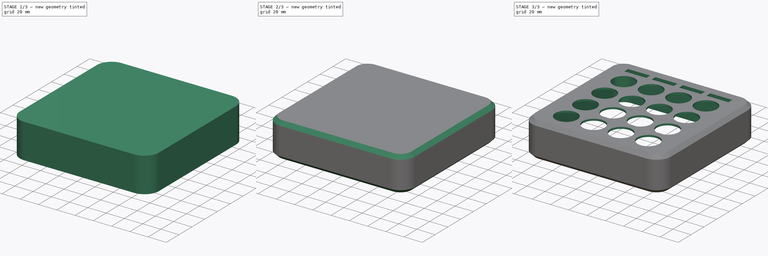
[diagram: build sequence overview — one tinted view per stage of 3, left to right]
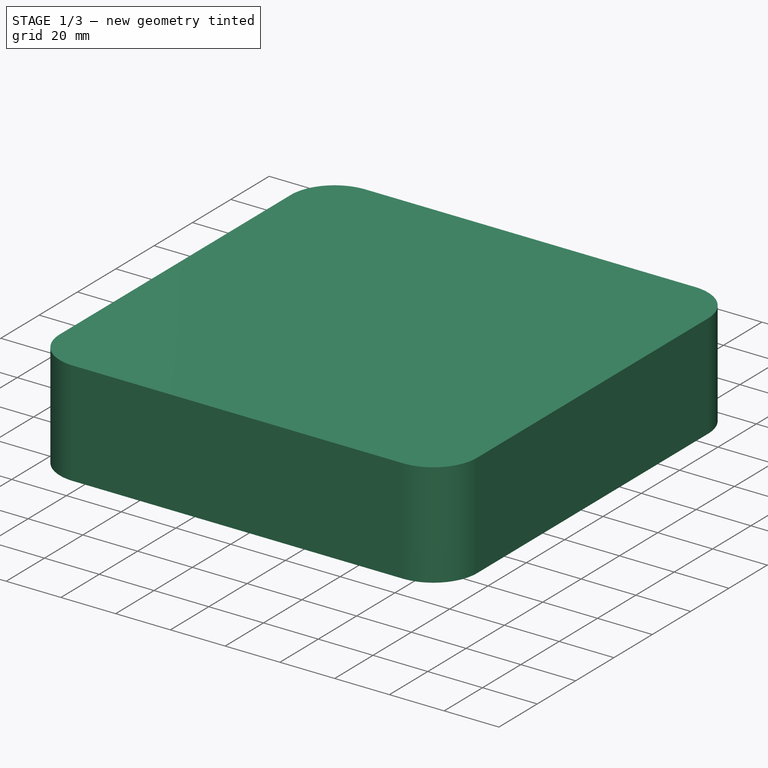
[diagram: stage 1 of 3 — iso view after this stage's code; geometry added in this stage tinted green]
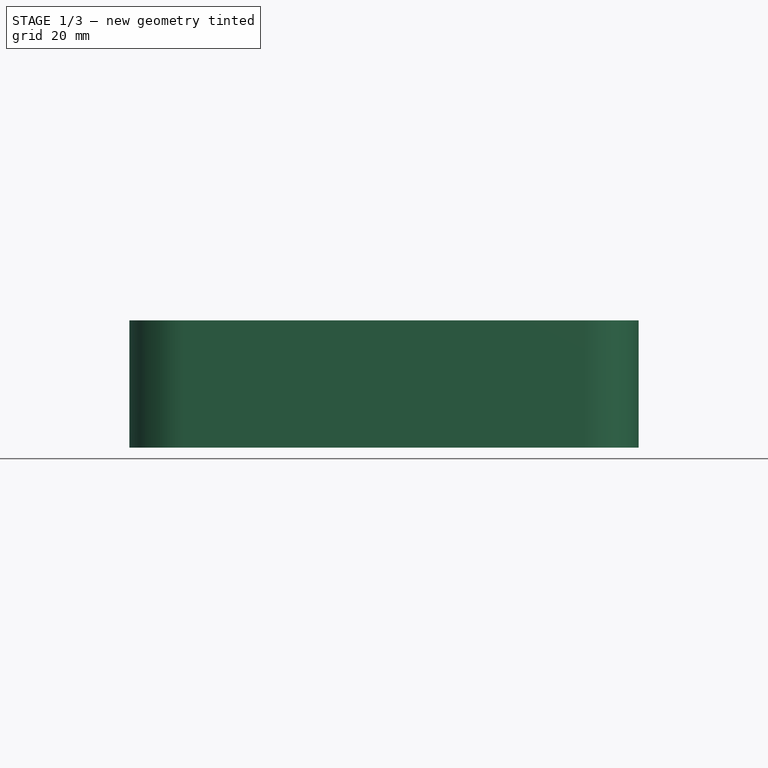
[diagram: stage 1 of 3 — front view after this stage's code; geometry added in this stage tinted green]
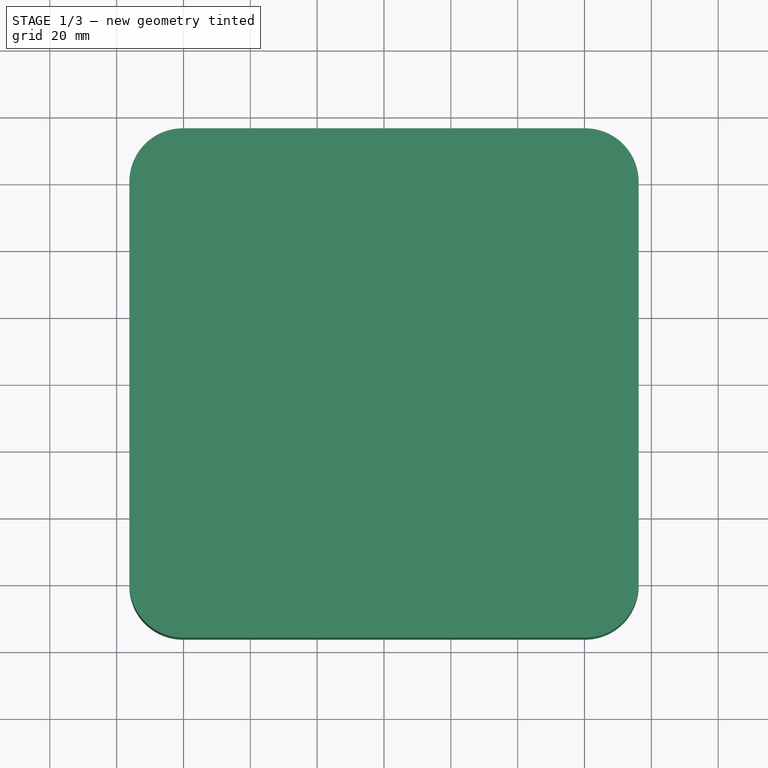
[diagram: stage 1 of 3 — top view after this stage's code; geometry added in this stage tinted green]
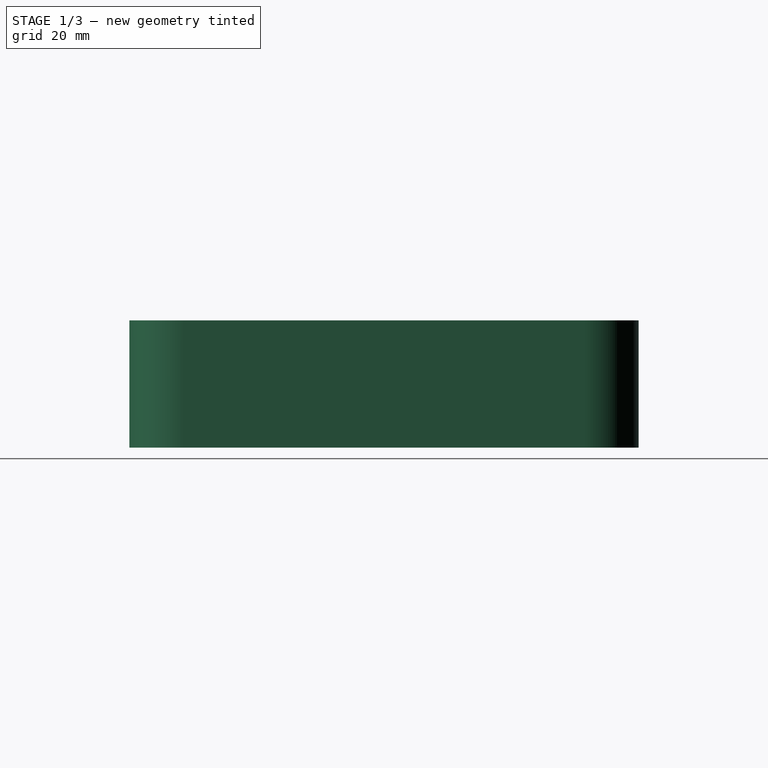
[diagram: stage 1 of 3 — right view after this stage's code; geometry added in this stage tinted green]
FCSTD DOCUMENT  (FreeCAD 0.18R4 (GitTag))
Label: New-Design
Comment: Project Vanilla, and its associated files, are part of a MIDI controller that is still in development.
License: All rights reserved
LicenseURL: http://en.wikipedia.org/wiki/All_rights_reserved
objects: Sketcher::SketchObject×2, PartDesign::Pocket×2, PartDesign::Pad×1, PartDesign::Fillet×1, PartDesign::Chamfer×1, PartDesign::Body×1
note: 11 computed .brp shape members not serialized (recipe doc carries the construction recipe); baked Part::Feature solids carry a one-line shape summary decoded from their .brp

FEATURE [Sketcher::SketchObject] Sketch  label="Base"
  MapMode = 5
  Support = -> [XY_Plane]
  sketch-geometry (9):
    g0: LineSegment [constr] StartX=76.2 StartY=76.2 StartZ=0 EndX=-76.2 EndY=76.2 EndZ=0
    g1: LineSegment [constr] StartX=-76.2 StartY=76.2 StartZ=0 EndX=-76.2 EndY=-76.2 EndZ=0
    g2: LineSegment [constr] StartX=-76.2 StartY=-76.2 StartZ=0 EndX=76.2 EndY=-76.2 EndZ=0
    g3: LineSegment [constr] StartX=76.2 StartY=-76.2 StartZ=0 EndX=76.2 EndY=76.2 EndZ=0
    g4: Circle [constr] CenterX=0 CenterY=0 CenterZ=0 NormalX=0 NormalY=0 NormalZ=1 AngleXU=0 Radius=107.763
    g5: LineSegment StartX=-76.2 StartY=-76.2 StartZ=0 EndX=76.2 EndY=-76.2 EndZ=0
    g6: LineSegment StartX=76.2 StartY=-76.2 StartZ=0 EndX=76.2 EndY=76.2 EndZ=0
    g7: LineSegment StartX=76.2 StartY=76.2 StartZ=0 EndX=-76.2 EndY=76.2 EndZ=0
    g8: LineSegment StartX=-76.2 StartY=76.2 StartZ=0 EndX=-76.2 EndY=-76.2 EndZ=0
  constraints (24):
    c: Coincident(g0,g1)
    c: Coincident(g1,g2)
    c: Coincident(g2,g3)
    c: Coincident(g3,g0)
    c: Equal(g0,g1)
    c: Equal(g0,g2)
    c: Equal(g0,g3)
    c: PointOnObject(g0,g4)
    c: PointOnObject(g1,g4)
    c: PointOnObject(g2,g4)
    c: PointOnObject(g3,g4)
    c: Coincident(g4,g-1)
    c: Angle(g-1,g3) = 1.5708
    c: DistanceX(g0,g0) = 152.4  'Side'
    c: Coincident(g5,g6)
    c: Coincident(g6,g7)
    c: Coincident(g7,g8)
    c: Coincident(g8,g5)
    c: Horizontal(g5)
    c: Horizontal(g7)
    c: Vertical(g6)
    c: Vertical(g8)
    c: Coincident(g5,g1)
    c: Coincident(g6,g0)
FEATURE [PartDesign::Pad] Pad  label="Thickness"
  Length = 38.1
  Length2 = 100
  Profile = -> Sketch
  Type = 0
  expr: Length = 1.5"
FEATURE [PartDesign::Fillet] Fillet
  Base = -> Pad [Edge8,Edge1,Edge2,Edge5]
  BaseFeature = -> Pad
  Radius = 16
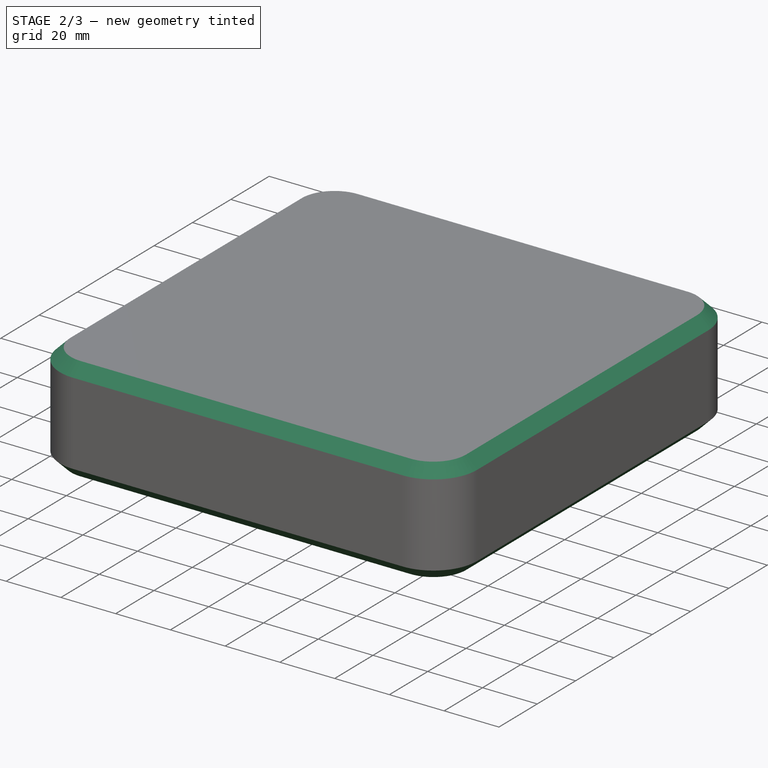
[diagram: stage 2 of 3 — iso view after this stage's code; geometry added in this stage tinted green]
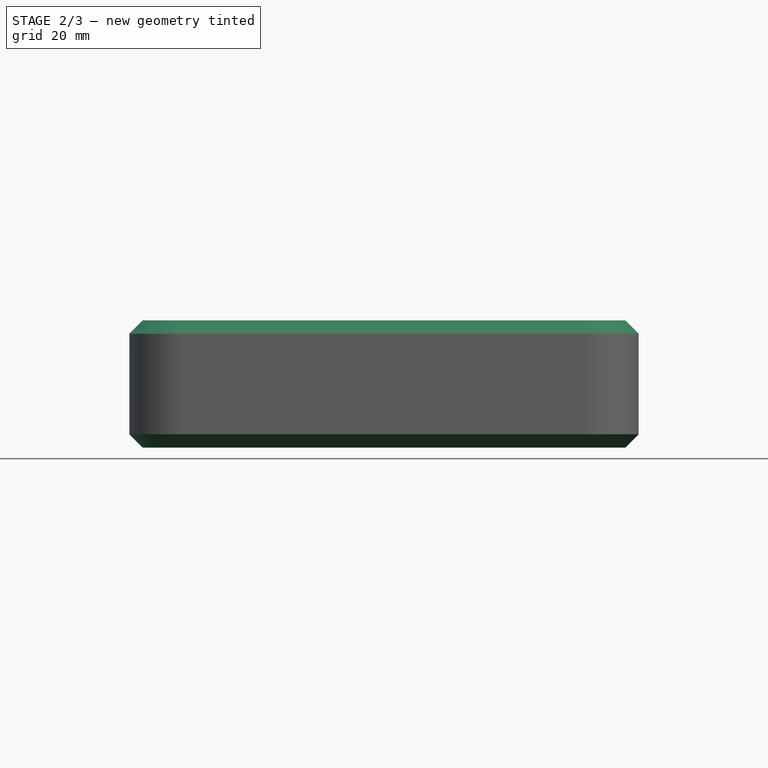
[diagram: stage 2 of 3 — front view after this stage's code; geometry added in this stage tinted green]
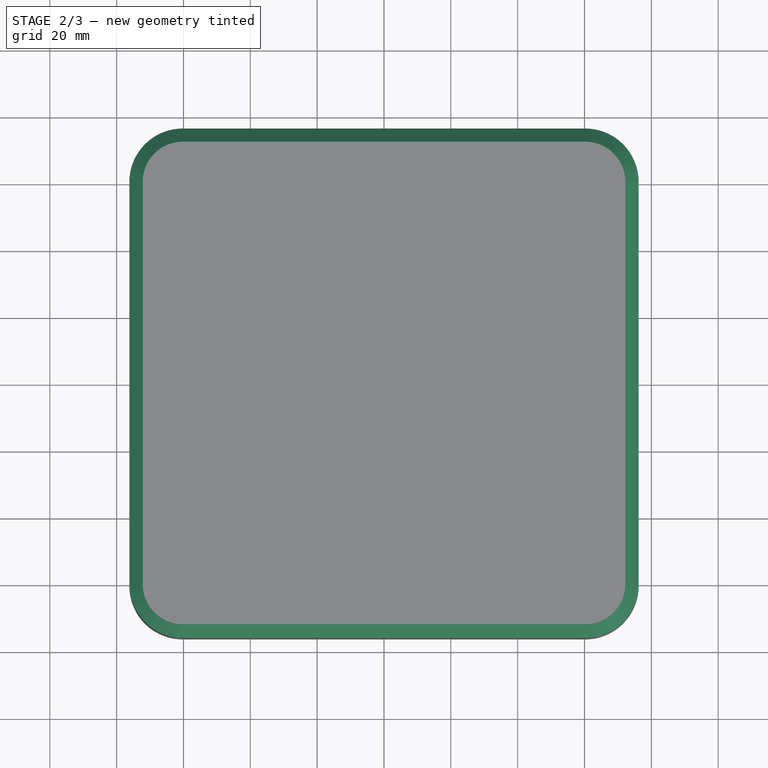
[diagram: stage 2 of 3 — top view after this stage's code; geometry added in this stage tinted green]
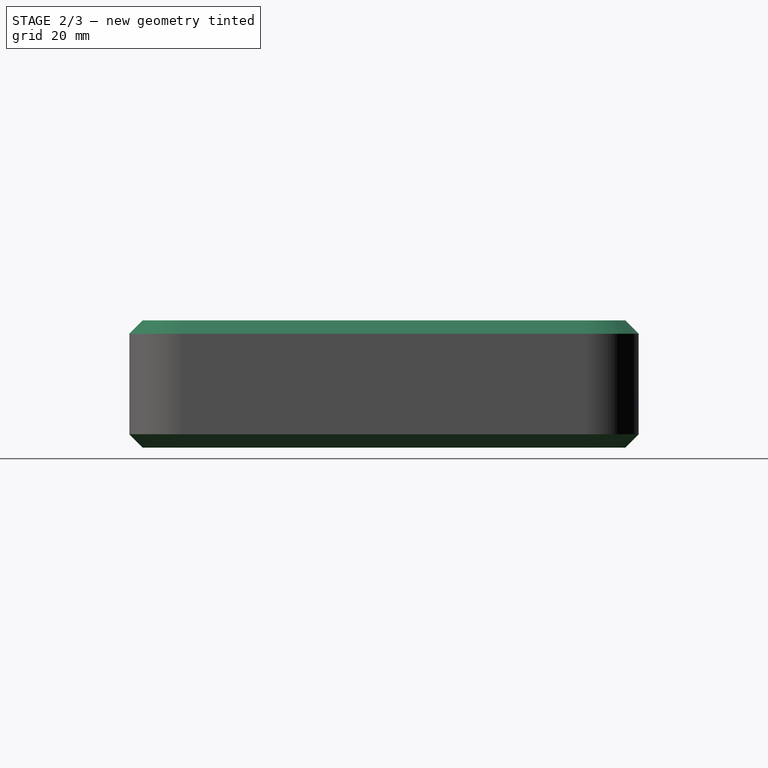
[diagram: stage 2 of 3 — right view after this stage's code; geometry added in this stage tinted green]
FEATURE [PartDesign::Chamfer] Chamfer
  Base = -> Fillet [Edge1,Edge4]
  BaseFeature = -> Fillet
  Size = 4
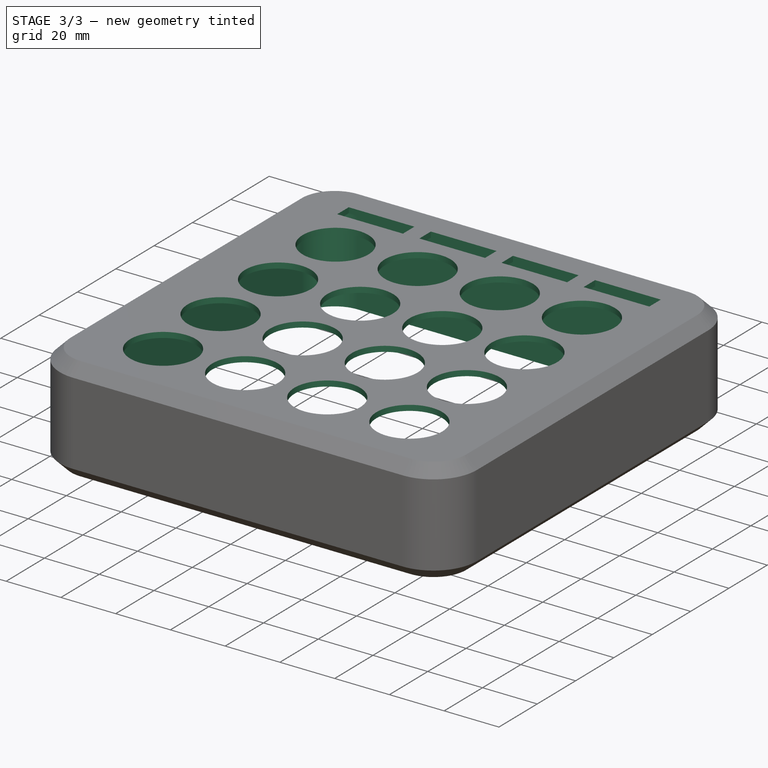
[diagram: stage 3 of 3 — iso view after this stage's code; geometry added in this stage tinted green]
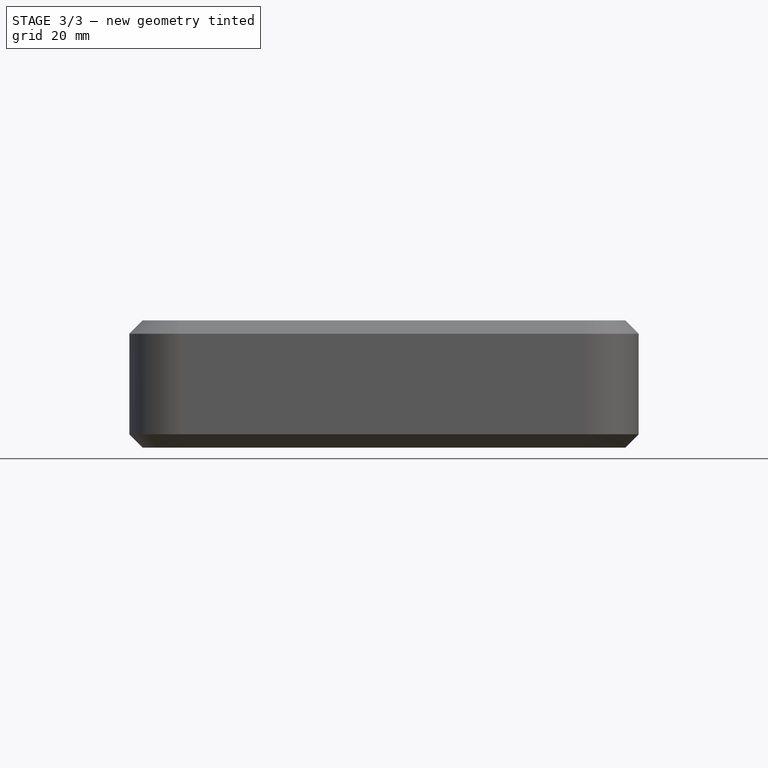
[diagram: stage 3 of 3 — front view after this stage's code; geometry added in this stage tinted green]
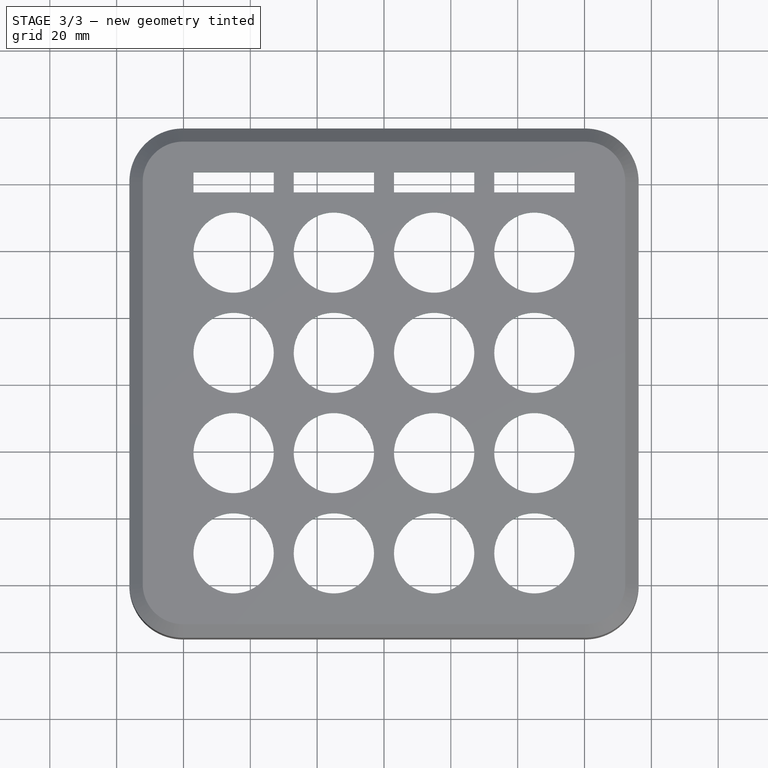
[diagram: stage 3 of 3 — top view after this stage's code; geometry added in this stage tinted green]
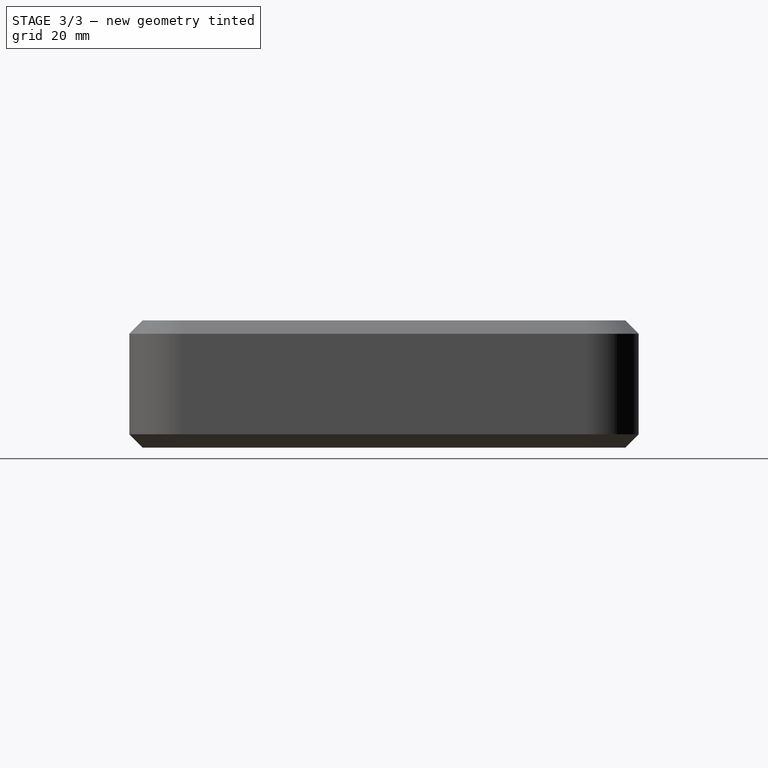
[diagram: stage 3 of 3 — right view after this stage's code; geometry added in this stage tinted green]
FEATURE [Sketcher::SketchObject] Sketch001  label="Holes"
  MapMode = 5
  Placement = pos=(0,0,38.1) rot=(0,0,1;0rad)
  Support = -> [Chamfer]
  expr: Constraints[84] = 24 / 4
  expr: Constraints[106] = 24 + 6
  expr: Constraints[91] = 12 + 3 + 6
  expr: Constraints[3] = 12 * 2 + 6
  sketch-geometry (65):
    g0: Circle CenterX=-45 CenterY=-51 CenterZ=0 NormalX=0 NormalY=0 NormalZ=1 AngleXU=0 Radius=12
    g1: Circle CenterX=-45 CenterY=-21 CenterZ=0 NormalX=0 NormalY=0 NormalZ=1 AngleXU=0 Radius=12
    g2: LineSegment [constr] StartX=-45 StartY=-51 StartZ=0 EndX=-45 EndY=-21 EndZ=0
    g3: Circle CenterX=-45 CenterY=9 CenterZ=0 NormalX=0 NormalY=0 NormalZ=1 AngleXU=0 Radius=12
    g4: LineSegment [constr] StartX=-45 StartY=-21 StartZ=0 EndX=-45 EndY=9 EndZ=0
    g5: Circle CenterX=-45 CenterY=39 CenterZ=0 NormalX=0 NormalY=0 NormalZ=1 AngleXU=0 Radius=12
    g6: LineSegment [constr] StartX=-45 StartY=9 StartZ=0 EndX=-45 EndY=39 EndZ=0
    g7: Circle CenterX=-15 CenterY=-51 CenterZ=0 NormalX=0 NormalY=0 NormalZ=1 AngleXU=0 Radius=12
    g8: LineSegment [constr] StartX=-45 StartY=-51 StartZ=0 EndX=-15 EndY=-51 EndZ=0
    g9: Circle CenterX=-15 CenterY=-21 CenterZ=0 NormalX=0 NormalY=0 NormalZ=1 AngleXU=0 Radius=12
    g10: LineSegment [constr] StartX=-15 StartY=-51 StartZ=0 EndX=-15 EndY=-21 EndZ=0
    g11: Circle CenterX=-15 CenterY=9 CenterZ=0 NormalX=0 NormalY=0 NormalZ=1 AngleXU=0 Radius=12
    g12: LineSegment [constr] StartX=-15 StartY=-21 StartZ=0 EndX=-15 EndY=9 EndZ=0
    g13: Circle CenterX=-15 CenterY=39 CenterZ=0 NormalX=0 NormalY=0 NormalZ=1 AngleXU=0 Radius=12
    g14: LineSegment [constr] StartX=-15 StartY=9 StartZ=0 EndX=-15 EndY=39 EndZ=0
    g15: Circle CenterX=15 CenterY=-51 CenterZ=0 NormalX=0 NormalY=0 NormalZ=1 AngleXU=0 Radius=12
    g16: LineSegment [constr] StartX=-15 StartY=-51 StartZ=0 EndX=15 EndY=-51 EndZ=0
    g17: Circle CenterX=15 CenterY=-21 CenterZ=0 NormalX=0 NormalY=0 NormalZ=1 AngleXU=0 Radius=12
    g18: LineSegment [constr] StartX=15 StartY=-51 StartZ=0 EndX=15 EndY=-21 EndZ=0
    g19: Circle CenterX=15 CenterY=9 CenterZ=0 NormalX=0 NormalY=0 NormalZ=1 AngleXU=0 Radius=12
    g20: LineSegment [constr] StartX=15 StartY=-21 StartZ=0 EndX=15 EndY=9 EndZ=0
    g21: Circle CenterX=15 CenterY=39 CenterZ=0 NormalX=0 NormalY=0 NormalZ=1 AngleXU=0 Radius=12
    g22: LineSegment [constr] StartX=15 StartY=9 StartZ=0 EndX=15 EndY=39 EndZ=0
    g23: Circle CenterX=45 CenterY=-51 CenterZ=0 NormalX=0 NormalY=0 NormalZ=1 AngleXU=0 Radius=12
    g24: LineSegment [constr] StartX=15 StartY=-51 StartZ=0 EndX=45 EndY=-51 EndZ=0
    g25: Circle CenterX=45 CenterY=-21 CenterZ=0 NormalX=0 NormalY=0 NormalZ=1 AngleXU=0 Radius=12
    g26: LineSegment [constr] StartX=45 StartY=-51 StartZ=0 EndX=45 EndY=-21 EndZ=0
    g27: Circle CenterX=45 CenterY=9 CenterZ=0 NormalX=0 NormalY=0 NormalZ=1 AngleXU=0 Radius=12
    g28: LineSegment [constr] StartX=45 StartY=-21 StartZ=0 EndX=45 EndY=9 EndZ=0
    g29: Circle CenterX=45 CenterY=39 CenterZ=0 NormalX=0 NormalY=0 NormalZ=1 AngleXU=0 Radius=12
    g30: LineSegment [constr] StartX=45 StartY=9 StartZ=0 EndX=45 EndY=39 EndZ=0
    g31: LineSegment StartX=-57 StartY=57 StartZ=0 EndX=-33 EndY=57 EndZ=0
    g32: LineSegment StartX=-33 StartY=57 StartZ=0 EndX=-33 EndY=63 EndZ=0
    g33: LineSegment StartX=-33 StartY=63 StartZ=0 EndX=-57 EndY=63 EndZ=0
    g34: LineSegment StartX=-57 StartY=63 StartZ=0 EndX=-57 EndY=57 EndZ=0
    g35: LineSegment [constr] StartX=-57 StartY=57 StartZ=0 EndX=-33 EndY=63 EndZ=0
    g36: LineSegment [constr] StartX=-57 StartY=63 StartZ=0 EndX=-33 EndY=57 EndZ=0
    g37: LineSegment [constr] StartX=-45 StartY=39 StartZ=0 EndX=-45 EndY=60 EndZ=0
    g38: LineSegment StartX=-27 StartY=57 StartZ=0 EndX=-3 EndY=57 EndZ=0
    g39: LineSegment StartX=-27 StartY=63 StartZ=0 EndX=-27 EndY=57 EndZ=0
    g40: LineSegment StartX=-3 StartY=63 StartZ=0 EndX=-27 EndY=63 EndZ=0
    g41: LineSegment StartX=-3 StartY=57 StartZ=0 EndX=-3 EndY=63 EndZ=0
    g42: LineSegment [constr] StartX=-57 StartY=57 StartZ=0 EndX=-27 EndY=57 EndZ=0
    g43: LineSegment StartX=3 StartY=57 StartZ=0 EndX=27 EndY=57 EndZ=0
    g44: LineSegment StartX=3 StartY=63 StartZ=0 EndX=3 EndY=57 EndZ=0
    g45: LineSegment StartX=27 StartY=63 StartZ=0 EndX=3 EndY=63 EndZ=0
    g46: LineSegment StartX=27 StartY=57 StartZ=0 EndX=27 EndY=63 EndZ=0
    g47: LineSegment [constr] StartX=-27 StartY=57 StartZ=0 EndX=3 EndY=57 EndZ=0
    g48: LineSegment StartX=33 StartY=57 StartZ=0 EndX=57 EndY=57 EndZ=0
    g49: LineSegment StartX=33 StartY=63 StartZ=0 EndX=33 EndY=57 EndZ=0
    g50: LineSegment StartX=57 StartY=63 StartZ=0 EndX=33 EndY=63 EndZ=0
    g51: LineSegment StartX=57 StartY=57 StartZ=0 EndX=57 EndY=63 EndZ=0
    g52: LineSegment [constr] StartX=3 StartY=57 StartZ=0 EndX=33 EndY=57 EndZ=0
    g53: LineSegment [constr] StartX=45 StartY=-51 StartZ=0 EndX=45 EndY=-63 EndZ=0
    g54: LineSegment [constr] StartX=45 StartY=-51 StartZ=0 EndX=57 EndY=-51 EndZ=0
    g55: LineSegment [constr] StartX=45 StartY=-63 StartZ=0 EndX=57 EndY=-63 EndZ=0
    g56: LineSegment [constr] StartX=57 StartY=-63 StartZ=0 EndX=57 EndY=-51 EndZ=0
    g57: LineSegment [constr] StartX=57 StartY=-51 StartZ=0 EndX=45 EndY=-51 EndZ=0
    g58: LineSegment [constr] StartX=45 StartY=-51 StartZ=0 EndX=45 EndY=-63 EndZ=0
    g59: LineSegment [constr] StartX=57 StartY=-63 StartZ=0 EndX=-57 EndY=-63 EndZ=0
    g60: LineSegment [constr] StartX=-57 StartY=-63 StartZ=0 EndX=-57 EndY=63 EndZ=0
    g61: LineSegment [constr] StartX=-57 StartY=63 StartZ=0 EndX=57 EndY=63 EndZ=0
    g62: LineSegment [constr] StartX=57 StartY=63 StartZ=0 EndX=57 EndY=-63 EndZ=0
    g63: LineSegment [constr] StartX=-57 StartY=-63 StartZ=0 EndX=57 EndY=63 EndZ=0
    g64: LineSegment [constr] StartX=-57 StartY=63 StartZ=0 EndX=57 EndY=-63 EndZ=0
  constraints (169):
    c: Equal(g0,g1) = 24
    c: Coincident(g0,g2)
    c: Coincident(g1,g2)
    c: Distance(g2) = 30
    c: Angle(g2) = 1.5708
    c: Equal(g0,g3) = 24
    c: Coincident(g1,g4)
    c: Coincident(g3,g4)
    c: Equal(g2,g4)
    c: Parallel(g4,g2)
    c: Equal(g0,g5) = 24
    c: Coincident(g3,g6)
    c: Coincident(g5,g6)
    c: Equal(g2,g6)
    c: Parallel(g6,g2)
    c: Equal(g0,g7) = 24
    c: Coincident(g0,g8)
    c: Coincident(g7,g8)
    c: Equal(g8,g2)
    c: Perpendicular(g8,g2)
    c: Equal(g0,g9) = 24
    c: Coincident(g7,g10)
    c: Coincident(g9,g10)
    c: Equal(g2,g10)
    c: Parallel(g10,g2)
    c: Equal(g0,g11) = 24
    c: Coincident(g9,g12)
    c: Coincident(g11,g12)
    c: Equal(g2,g12)
    c: Parallel(g12,g2)
    c: Equal(g0,g13) = 24
    c: Coincident(g11,g14)
    c: Coincident(g13,g14)
    c: Equal(g2,g14)
    c: Parallel(g14,g2)
    c: Equal(g0,g15) = 24
    c: Coincident(g7,g16)
    c: Coincident(g15,g16)
    c: Equal(g8,g16)
    c: Perpendicular(g16,g2)
    c: Equal(g0,g17) = 24
    c: Coincident(g15,g18)
    c: Coincident(g17,g18)
    c: Equal(g2,g18)
    c: Parallel(g18,g2)
    c: Equal(g0,g19) = 24
    c: Coincident(g17,g20)
    c: Coincident(g19,g20)
    c: Equal(g2,g20)
    c: Parallel(g20,g2)
    c: Equal(g0,g21) = 24
    c: Coincident(g19,g22)
    c: Coincident(g21,g22)
    c: Equal(g2,g22)
    c: Parallel(g22,g2)
    c: Equal(g0,g23) = 24
    c: Coincident(g15,g24)
    c: Coincident(g23,g24)
    c: Equal(g8,g24)
    c: Perpendicular(g24,g2)
    c: Equal(g0,g25) = 24
    c: Coincident(g23,g26)
    c: Coincident(g25,g26)
    c: Equal(g2,g26)
    c: Parallel(g26,g2)
    c: Equal(g0,g27) = 24
    c: Coincident(g25,g28)
    c: Coincident(g27,g28)
    c: Equal(g2,g28)
    c: Parallel(g28,g2)
    c: Equal(g0,g29) = 24
    c: Coincident(g27,g30)
    c: Coincident(g29,g30)
    c: Equal(g2,g30)
    c: Parallel(g30,g2)
    c: Coincident(g31,g32)
    c: Coincident(g32,g33)
    c: Coincident(g33,g34)
    c: Coincident(g34,g31)
    c: Horizontal(g31)
    c: Horizontal(g33)
    c: Vertical(g32)
    c: Vertical(g34)
    c: DistanceX(g33,g33) = 24
    c: DistanceY(g32,g32) = 6
    c: Coincident(g35,g31)
    c: Coincident(g35,g32)
    c: Coincident(g36,g33)
    c: Coincident(g36,g31)
    c: Coincident(g37,g5)
    c: Vertical(g37)
    c: DistanceY(g37,g37) = 21
    c: PointOnObject(g37,g35)
    c: PointOnObject(g37,g36)
    c: Coincident(g38,g41)
    c: Coincident(g41,g40)
    c: Coincident(g40,g39)
    c: Coincident(g39,g38)
    c: Horizontal(g38)
    c: Horizontal(g40)
    c: Vertical(g41)
    c: Vertical(g39)
    c: Equal(g33,g40) = 24
    c: Equal(g32,g41) = 6
    c: Coincident(g31,g42)
    c: Coincident(g38,g42)
    c: Distance(g42) = 30
    c: Angle(g42) = 0
    c: Coincident(g43,g46)
    c: Coincident(g46,g45)
    c: Coincident(g45,g44)
    c: Coincident(g44,g43)
    c: Horizontal(g43)
    c: Horizontal(g45)
    c: Vertical(g46)
    c: Vertical(g44)
    c: Equal(g33,g45) = 24
    c: Equal(g32,g46) = 6
    c: Coincident(g38,g47)
    c: Coincident(g43,g47)
    c: Equal(g42,g47)
    c: Parallel(g47,g42)
    c: Coincident(g48,g51)
    c: Coincident(g51,g50)
    c: Coincident(g50,g49)
    c: Coincident(g49,g48)
    c: Horizontal(g48)
    c: Horizontal(g50)
    c: Vertical(g51)
    c: Vertical(g49)
    c: Equal(g33,g50) = 24
    c: Equal(g32,g51) = 6
    c: Coincident(g43,g52)
    c: Coincident(g48,g52)
    c: Equal(g42,g52)
    c: Parallel(g52,g42)
    c: Coincident(g53,g23)
    c: PointOnObject(g53,g23)
    c: Diameter(g1) = 24
    c: Vertical(g53)
    c: Coincident(g54,g23)
    c: PointOnObject(g54,g23)
    c: Horizontal(g54)
    c: Coincident(g55,g56)
    c: Coincident(g56,g57)
    c: Coincident(g57,g58)
    c: Coincident(g58,g55)
    c: Horizontal(g55)
    c: Horizontal(g57)
    c: Vertical(g56)
    c: Vertical(g58)
    c: Coincident(g55,g53)
    c: Coincident(g56,g54)
    c: Coincident(g59,g60)
    c: Coincident(g60,g61)
    c: Coincident(g61,g62)
    c: Coincident(g62,g59)
    c: Horizontal(g59)
    c: Horizontal(g61)
    c: Vertical(g60)
    c: Vertical(g62)
    c: Coincident(g59,g55)
    c: Coincident(g60,g33)
    c: Coincident(g63,g59)
    c: Coincident(g63,g50)
    c: Coincident(g64,g33)
    c: Coincident(g64,g55)
    c: PointOnObject(g-1,g63)
    c: PointOnObject(g-1,g64)
FEATURE [PartDesign::Pocket] Pocket
  BaseFeature = -> Chamfer
  Length = 5
  Length2 = 100
  Profile = -> Sketch001
  Type = 1
FEATURE [PartDesign::Pocket] Pocket001  label="Interior"
  BaseFeature = -> Pocket
  Length = 36.1
  Length2 = 100
  Profile = -> Pocket [Face9]
  Type = 0
  expr: Length = 1.5" - 2mm
FEATURE [PartDesign::Body] Body
  Group = -> [Sketch,Pad,Fillet,Chamfer,Sketch001,Pocket,Pocket001]
  Origin = -> Origin
  Tip = -> Pocket001
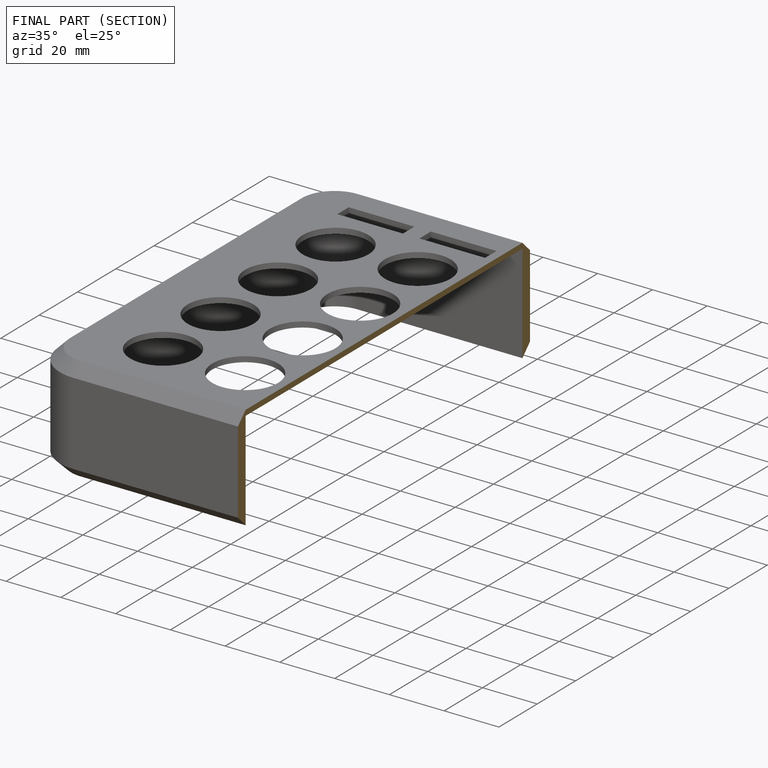
[diagram: finished part — half-section view (interior)]
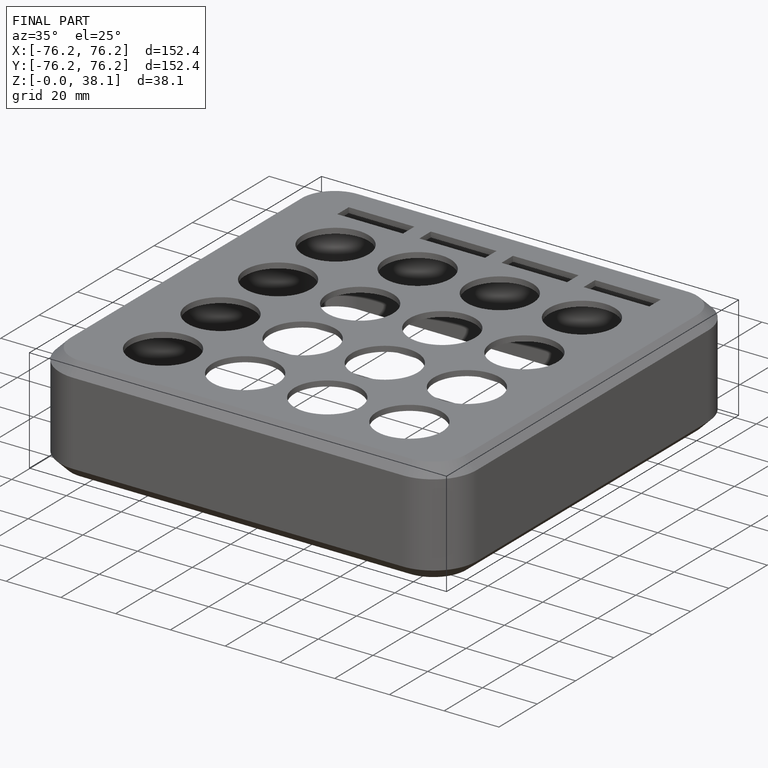
[diagram: finished part — iso view with bounding-box wireframe]
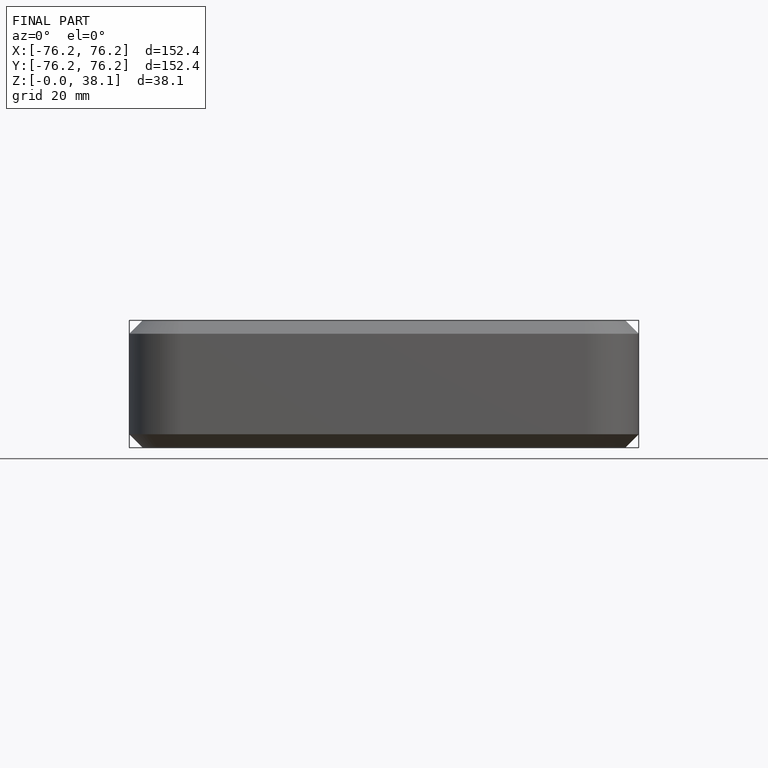
[diagram: finished part — front view with bounding-box wireframe]
